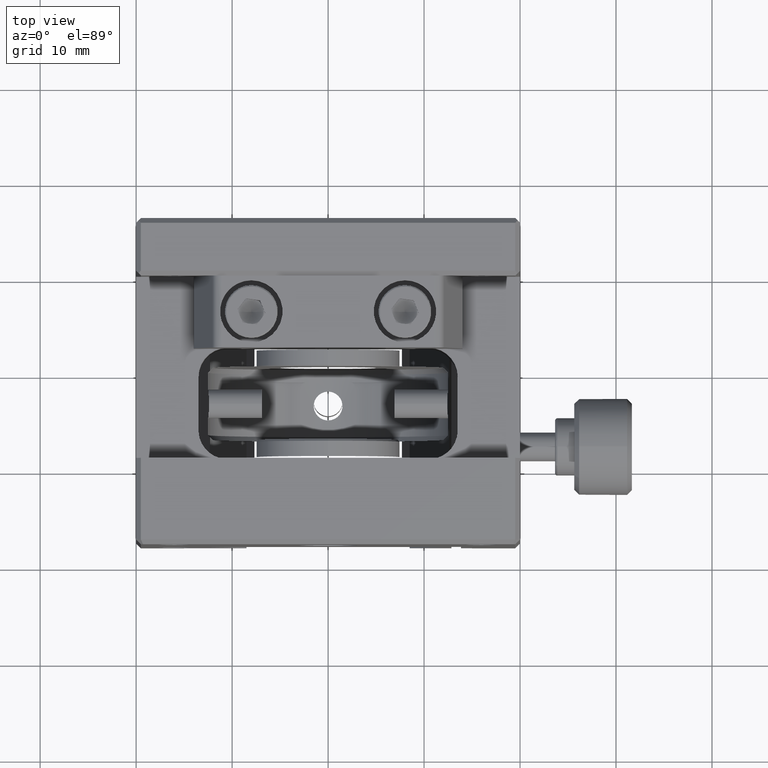
[diagram: clean part render]
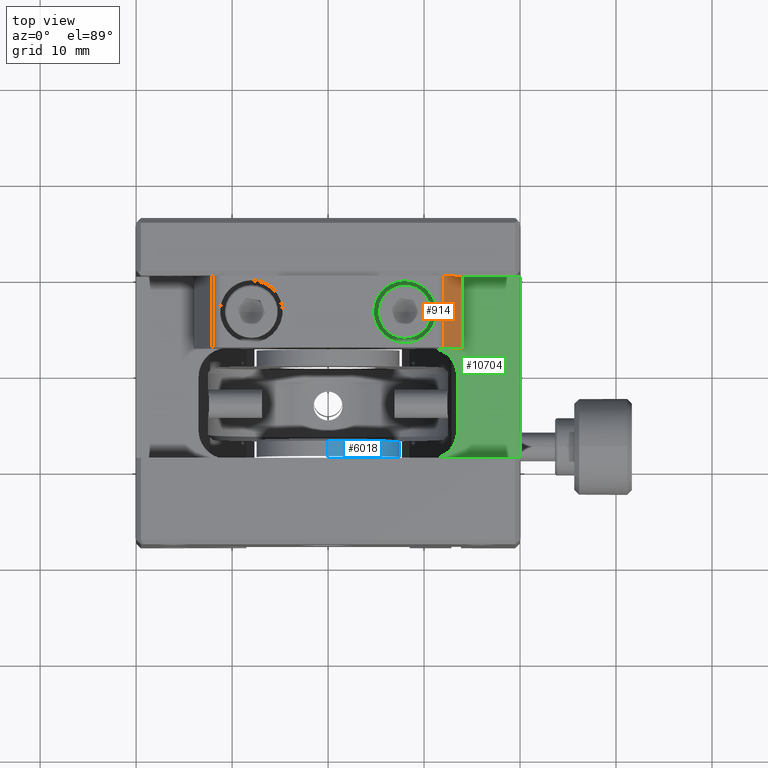
[diagram: same view with three faces highlighted in distinct colors, each labeled with its STEP entity id]
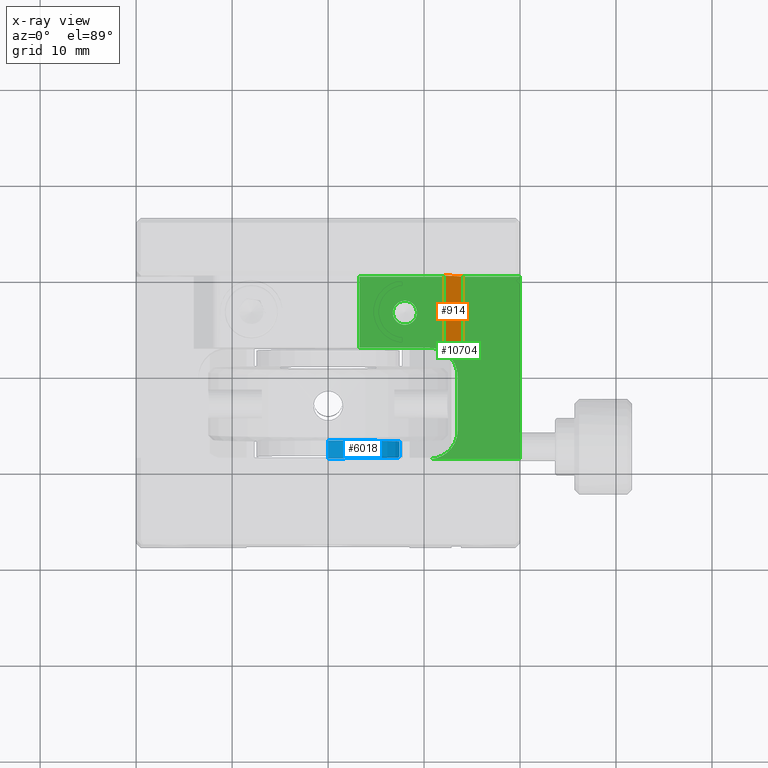
[diagram: x-ray of the same camera — body ghosted, the three highlighted faces saturated]
A machine part, top view with three faces highlighted in distinct colors.
The next image is the same camera in x-ray (body ghosted, the three faces saturated) — at least one of them is partly hidden behind the body in this view.
Their STEP definitions:

[orange] entity #914 — the highlighted planar face has unit normal (-0.9397, -0, -0.342).
#675 = LINE ( 'NONE', #8163, #6740 ) ;
#688 = CARTESIAN_POINT ( 'NONE',  ( 14.00000000000000355, 1.445602896647339311E-15, -6.000000000000000888 ) ) ;
#914 = ADVANCED_FACE ( 'NONE', ( #1617 ), #5361, .F. ) ;
#1058 = LINE ( 'NONE', #8606, #3440 ) ;
#1502 = CARTESIAN_POINT ( 'NONE',  ( 11.81617859440281570, -7.499999999999999112, -1.734723475976807094E-15 ) ) ;
#1615 = VECTOR ( 'NONE', #7151, 1000.000000000000000 ) ;
#1617 = FACE_OUTER_BOUND ( 'NONE', #2681, .T. ) ;
#1908 = CARTESIAN_POINT ( 'NONE',  ( 14.00000000000000355, -7.499999999999999112, -6.000000000000000000 ) ) ;
#2310 = CARTESIAN_POINT ( 'NONE',  ( 12.05566367697901242, -7.499999999999999112, -0.6579798566743361166 ) ) ;
#2583 = ORIENTED_EDGE ( 'NONE', *, *, #7235, .T. ) ;
#2681 = EDGE_LOOP ( 'NONE', ( #6447, #7740, #2583, #7247 ) ) ;
#2758 = DIRECTION ( 'NONE',  ( -0.3420201433256652712, -1.525740081227650588E-16, 0.9396926207859096492 ) ) ;
#3323 = AXIS2_PLACEMENT_3D ( 'NONE', #1502, #9102, #3342 ) ;
#3342 = DIRECTION ( 'NONE',  ( -0.3420201433256653267, 0.000000000000000000, 0.9396926207859096492 ) ) ;
#3440 = VECTOR ( 'NONE', #10371, 1000.000000000000000 ) ;
#4953 = CARTESIAN_POINT ( 'NONE',  ( 14.00000000000000355, -7.499999999999999112, -6.000000000000000888 ) ) ;
#5246 = CARTESIAN_POINT ( 'NONE',  ( 12.05566367697901242, -7.500000000000000000, -0.6579798566743362276 ) ) ;
#5361 = PLANE ( 'NONE',  #3323 ) ;
#6340 = EDGE_CURVE ( 'NONE', #8875, #7981, #9383, .T. ) ;
#6447 = ORIENTED_EDGE ( 'NONE', *, *, #7950, .F. ) ;
#6632 = CARTESIAN_POINT ( 'NONE',  ( 12.05566367697901065, 9.456068667634190452E-16, -0.6579798566743365607 ) ) ;
#6740 = VECTOR ( 'NONE', #10964, 1000.000000000000000 ) ;
#7151 = DIRECTION ( 'NONE',  ( -1.470527402446505349E-16, 1.000000000000000000, -5.352282031633185734E-17 ) ) ;
#7235 = EDGE_CURVE ( 'NONE', #8875, #11680, #675, .T. ) ;
#7247 = ORIENTED_EDGE ( 'NONE', *, *, #10917, .F. ) ;
#7279 = VERTEX_POINT ( 'NONE', #6632 ) ;
#7703 = VECTOR ( 'NONE', #2758, 1000.000000000000000 ) ;
#7740 = ORIENTED_EDGE ( 'NONE', *, *, #6340, .F. ) ;
#7950 = EDGE_CURVE ( 'NONE', #7981, #7279, #8869, .T. ) ;
#7981 = VERTEX_POINT ( 'NONE', #5246 ) ;
#8163 = CARTESIAN_POINT ( 'NONE',  ( 14.00000000000000355, -7.499999999999998224, -6.000000000000000000 ) ) ;
#8606 = CARTESIAN_POINT ( 'NONE',  ( 11.81617859440281393, 8.673617379884035472E-16, -2.136144628349295926E-15 ) ) ;
#8869 = LINE ( 'NONE', #2310, #1615 ) ;
#8875 = VERTEX_POINT ( 'NONE', #4953 ) ;
#9102 = DIRECTION ( 'NONE',  ( -0.9396926207859096492, -1.564902575500309221E-16, -0.3420201433256653267 ) ) ;
#9383 = LINE ( 'NONE', #1908, #7703 ) ;
#10371 = DIRECTION ( 'NONE',  ( 0.3420201433256653267, -0.000000000000000000, -0.9396926207859096492 ) ) ;
#10917 = EDGE_CURVE ( 'NONE', #7279, #11680, #1058, .T. ) ;
#10964 = DIRECTION ( 'NONE',  ( -1.665334536937734811E-16, 1.000000000000000000, -0.000000000000000000 ) ) ;
#11680 = VERTEX_POINT ( 'NONE', #688 ) ;

[blue] entity #6018 — the highlighted cylindrical surface (partial cylindrical patch) has radius 7.5 mm, axis along (-0, -1, -0).
#523 = EDGE_CURVE ( 'NONE', #10923, #3655, #3002, .T. ) ;
#893 = VECTOR ( 'NONE', #1133, 1000.000000000000000 ) ;
#1133 = DIRECTION ( 'NONE',  ( -0.000000000000000000, -1.000000000000000000, -0.000000000000000000 ) ) ;
#1534 = CARTESIAN_POINT ( 'NONE',  ( 9.184850993605142028E-16, -17.19999999999999929, -0.5000000000000004441 ) ) ;
#1725 = CARTESIAN_POINT ( 'NONE',  ( -5.777789833161707559E-31, -16.99999999999999289, -8.000000000000000000 ) ) ;
#2041 = CARTESIAN_POINT ( 'NONE',  ( 9.184850993605142028E-16, -18.79999999999999716, -0.5000000000000004441 ) ) ;
#2327 = DIRECTION ( 'NONE',  ( 0.000000000000000000, 0.000000000000000000, -1.000000000000000000 ) ) ;
#3002 = LINE ( 'NONE', #3868, #12109 ) ;
#3085 = CARTESIAN_POINT ( 'NONE',  ( -5.777789833161707559E-31, -17.19999999999999929, -15.50000000000000000 ) ) ;
#3150 = LINE ( 'NONE', #5855, #893 ) ;
#3573 = CARTESIAN_POINT ( 'NONE',  ( -5.777789833161707559E-31, -18.79999999999999716, -15.50000000000000000 ) ) ;
#3655 = VERTEX_POINT ( 'NONE', #3573 ) ;
#3868 = CARTESIAN_POINT ( 'NONE',  ( -5.777789833161707559E-31, -16.99999999999999289, -15.50000000000000000 ) ) ;
#4224 = EDGE_CURVE ( 'NONE', #10923, #11121, #10194, .T. ) ;
#4268 = ORIENTED_EDGE ( 'NONE', *, *, #5278, .T. ) ;
#4779 = DIRECTION ( 'NONE',  ( 0.000000000000000000, 1.000000000000000000, 0.000000000000000000 ) ) ;
#4799 = DIRECTION ( 'NONE',  ( 0.000000000000000000, 0.000000000000000000, -1.000000000000000000 ) ) ;
#4924 = AXIS2_PLACEMENT_3D ( 'NONE', #9069, #10663, #2327 ) ;
#5278 = EDGE_CURVE ( 'NONE', #10898, #3655, #5321, .T. ) ;
#5321 = CIRCLE ( 'NONE', #7685, 7.500000000000000000 ) ;
#5648 = EDGE_LOOP ( 'NONE', ( #5805, #9419, #4268, #6997 ) ) ;
#5805 = ORIENTED_EDGE ( 'NONE', *, *, #4224, .T. ) ;
#5855 = CARTESIAN_POINT ( 'NONE',  ( 9.184850993605142028E-16, -16.99999999999999289, -0.5000000000000004441 ) ) ;
#5942 = CARTESIAN_POINT ( 'NONE',  ( -5.777789833161707559E-31, -18.79999999999999716, -8.000000000000000000 ) ) ;
#6018 = ADVANCED_FACE ( 'NONE', ( #10121 ), #6581, .T. ) ;
#6581 = CYLINDRICAL_SURFACE ( 'NONE', #11199, 7.500000000000000000 ) ;
#6997 = ORIENTED_EDGE ( 'NONE', *, *, #523, .F. ) ;
#7545 = DIRECTION ( 'NONE',  ( -0.000000000000000000, -1.000000000000000000, -0.000000000000000000 ) ) ;
#7685 = AXIS2_PLACEMENT_3D ( 'NONE', #5942, #4779, #8766 ) ;
#8766 = DIRECTION ( 'NONE',  ( 0.000000000000000000, 0.000000000000000000, -1.000000000000000000 ) ) ;
#9069 = CARTESIAN_POINT ( 'NONE',  ( -5.777789833161707559E-31, -17.19999999999999929, -8.000000000000000000 ) ) ;
#9419 = ORIENTED_EDGE ( 'NONE', *, *, #10476, .T. ) ;
#10121 = FACE_OUTER_BOUND ( 'NONE', #5648, .T. ) ;
#10194 = CIRCLE ( 'NONE', #4924, 7.500000000000000000 ) ;
#10476 = EDGE_CURVE ( 'NONE', #11121, #10898, #3150, .T. ) ;
#10663 = DIRECTION ( 'NONE',  ( -0.000000000000000000, -1.000000000000000000, -0.000000000000000000 ) ) ;
#10898 = VERTEX_POINT ( 'NONE', #2041 ) ;
#10923 = VERTEX_POINT ( 'NONE', #3085 ) ;
#11121 = VERTEX_POINT ( 'NONE', #1534 ) ;
#11158 = DIRECTION ( 'NONE',  ( -0.000000000000000000, -1.000000000000000000, -0.000000000000000000 ) ) ;
#11199 = AXIS2_PLACEMENT_3D ( 'NONE', #1725, #11158, #4799 ) ;
#12109 = VECTOR ( 'NONE', #7545, 1000.000000000000000 ) ;

[green] entity #10704 — the highlighted planar face has unit normal (0, -0, -1).
#27 = CARTESIAN_POINT ( 'NONE',  ( 7.499993541613416248, -4.895850069176868047, -8.000000000000000000 ) ) ;
#72 = VERTEX_POINT ( 'NONE', #1786 ) ;
#93 = VECTOR ( 'NONE', #7124, 1000.000000000000000 ) ;
#102 = B_SPLINE_CURVE_WITH_KNOTS ( 'NONE', 3,
 ( #4556, #887, #8498, #12025, #1008, #11240, #2848, #946, #2664, #11959, #4496, #3639, #7383, #10258, #11114, #7510, #5610, #1737, #11173, #5480, #9409, #11050, #6596, #4685, #8431, #12087, #6531, #2722, #11303, #27, #10323, #1932, #1992, #3766 ),
 .UNSPECIFIED., .F., .F.,
 ( 4, 1, 1, 2, 2, 2, 1, 1, 2, 2, 2, 1, 1, 2, 2, 2, 1, 1, 2, 2, 4 ),
 ( -1.000000000000000000, -0.9375000000000035527, -0.9062500000000046629, -0.8906250000000048850, -0.8750000000000051070, -0.7500000000000062172, -0.6875000000000068834, -0.6562500000000069944, -0.6406250000000071054, -0.6250000000000071054, -0.5000000000000068834, -0.4375000000000067724, -0.4062500000000069944, -0.3906250000000074385, -0.3750000000000078826, -0.2500000000000073275, -0.1875000000000072164, -0.1562500000000068834, -0.1406250000000067724, -0.1250000000000066613, -0.000000000000000000 ),
 .UNSPECIFIED. ) ;
#348 = CARTESIAN_POINT ( 'NONE',  ( 10.50000000000000178, -7.400000000000000355, -7.999999999999998224 ) ) ;
#384 = VECTOR ( 'NONE', #2757, 1000.000000000000000 ) ;
#396 = ORIENTED_EDGE ( 'NONE', *, *, #7531, .T. ) ;
#432 = CARTESIAN_POINT ( 'NONE',  ( 8.762040589325788886, -4.755621433371129747, -8.000000000000000000 ) ) ;
#493 = CARTESIAN_POINT ( 'NONE',  ( 8.500006458386717867, -2.604149930823215886, -7.999999999999996447 ) ) ;
#569 = EDGE_CURVE ( 'NONE', #1240, #6356, #8345, .T. ) ;
#608 = CARTESIAN_POINT ( 'NONE',  ( 8.440097116323562076, -4.920152050935755028, -8.000000000000000000 ) ) ;
#647 = ORIENTED_EDGE ( 'NONE', *, *, #10189, .F. ) ;
#667 = CARTESIAN_POINT ( 'NONE',  ( 9.176421480074893111, -3.326998695649778348, -8.000000000000000000 ) ) ;
#854 = ORIENTED_EDGE ( 'NONE', *, *, #5142, .F. ) ;
#887 = CARTESIAN_POINT ( 'NONE',  ( 7.920612784121279226, -2.500000000000011546, -7.999999999999998224 ) ) ;
#946 = CARTESIAN_POINT ( 'NONE',  ( 7.379711448015188857, -2.651098020535079147, -7.999999999999998224 ) ) ;
#1008 = CARTESIAN_POINT ( 'NONE',  ( 7.614289195640550290, -2.560795286189442077, -7.999999999999996447 ) ) ;
#1211 = CARTESIAN_POINT ( 'NONE',  ( 13.49999999999999822, -10.40000000000000213, -7.999999999999998224 ) ) ;
#1240 = VERTEX_POINT ( 'NONE', #7075 ) ;
#1245 = CARTESIAN_POINT ( 'NONE',  ( 13.47367061289842027, -16.47199277660315175, -8.000000000000001776 ) ) ;
#1355 = CARTESIAN_POINT ( 'NONE',  ( 8.478570188832593502, -2.595078342311302855, -7.999999999999998224 ) ) ;
#1414 = CARTESIAN_POINT ( 'NONE',  ( 9.145850069176427510, -4.250006458387224129, -7.999999999999996447 ) ) ;
#1422 = CARTESIAN_POINT ( 'NONE',  ( -19.99999999999999645, -19.00000000000000000, -7.999999999999998224 ) ) ;
#1529 = CARTESIAN_POINT ( 'NONE',  ( 8.329462014452316154, -4.957031902993924710, -7.999999999999998224 ) ) ;
#1586 = CARTESIAN_POINT ( 'NONE',  ( 8.385710804359064241, -4.939204713810558367, -7.999999999999998224 ) ) ;
#1652 = VECTOR ( 'NONE', #5159, 1000.000000000000000 ) ;
#1673 = CARTESIAN_POINT ( 'NONE',  ( 10.50000000000000178, -7.400000000000000355, -7.999999999999998224 ) ) ;
#1689 = ORIENTED_EDGE ( 'NONE', *, *, #10400, .F. ) ;
#1737 = CARTESIAN_POINT ( 'NONE',  ( 6.749966349049403291, -3.829302112622358756, -8.000000000000000000 ) ) ;
#1786 = CARTESIAN_POINT ( 'NONE',  ( 8.000000000000001776, -4.999999999999988454, -7.999999999999998224 ) ) ;
#1932 = CARTESIAN_POINT ( 'NONE',  ( 7.687496028089998212, -4.970745125442667778, -8.000000000000000000 ) ) ;
#1992 = CARTESIAN_POINT ( 'NONE',  ( 7.840868823740778204, -4.999999999999989342, -8.000000000000000000 ) ) ;
#2165 = CARTESIAN_POINT ( 'NONE',  ( 12.47472323207150247, -18.26786483831504881, -8.000000000000000000 ) ) ;
#2282 = CARTESIAN_POINT ( 'NONE',  ( 13.13669920371255095, -17.48971598678195960, -7.999999999999998224 ) ) ;
#2329 = CARTESIAN_POINT ( 'NONE',  ( 8.312503971910322420, -2.529254874557332666, -8.000000000000000000 ) ) ;
#2386 = B_SPLINE_CURVE_WITH_KNOTS ( 'NONE', 3,
 ( #11099, #2709, #1245, #4860, #3198, #8605, #7861, #8838, #2282, #5785, #2165, #5042, #8783, #7621, #6946, #9522, #11465, #9701, #10671, #3139 ),
 .UNSPECIFIED., .F., .F.,
 ( 4, 1, 1, 1, 2, 2, 2, 1, 1, 1, 2, 2, 4 ),
 ( 0.000000000000000000, 0.1250000000000053568, 0.1875000000000092149, 0.2187500000000111300, 0.2343750000000120737, 0.2500000000000130451, 0.5000000000000150990, 0.6250000000000157652, 0.6875000000000165423, 0.7187500000000169864, 0.7343750000000162093, 0.7500000000000154321, 1.000000000000000000 ),
 .UNSPECIFIED. ) ;
#2390 = CARTESIAN_POINT ( 'NONE',  ( 8.596524617191235507, -2.649880677853070576, -7.999999999999998224 ) ) ;
#2468 = FACE_OUTER_BOUND ( 'NONE', #4835, .T. ) ;
#2509 = CARTESIAN_POINT ( 'NONE',  ( 9.100119322145930667, -4.346524617192653039, -8.000000000000001776 ) ) ;
#2560 = LINE ( 'NONE', #4341, #5768 ) ;
#2570 = CARTESIAN_POINT ( 'NONE',  ( 8.159131176259542428, -2.500000000000011990, -8.000000000000001776 ) ) ;
#2661 = AXIS2_PLACEMENT_3D ( 'NONE', #4482, #3566, #4736 ) ;
#2664 = CARTESIAN_POINT ( 'NONE',  ( 7.237959410675434135, -2.744378566626685778, -8.000000000000000000 ) ) ;
#2709 = CARTESIAN_POINT ( 'NONE',  ( 13.50000000000000355, -16.19083272029567055, -7.999999999999998224 ) ) ;
#2722 = CARTESIAN_POINT ( 'NONE',  ( 7.403475382809137528, -4.850119322147165235, -7.999999999999996447 ) ) ;
#2757 = DIRECTION ( 'NONE',  ( 0.000000000000000000, -1.000000000000000000, -0.000000000000000000 ) ) ;
#2848 = CARTESIAN_POINT ( 'NONE',  ( 7.559902883676723917, -2.579847949064084212, -7.999999999999998224 ) ) ;
#2862 = LINE ( 'NONE', #9232, #9890 ) ;
#2886 = ORIENTED_EDGE ( 'NONE', *, *, #10278, .F. ) ;
#3139 = CARTESIAN_POINT ( 'NONE',  ( 10.50000000000000000, -18.99999999999999645, -7.999999999999998224 ) ) ;
#3163 = CARTESIAN_POINT ( 'NONE',  ( 13.12135916506277056, -8.889143058887301052, -7.999999999999996447 ) ) ;
#3198 = CARTESIAN_POINT ( 'NONE',  ( 13.34696043747201877, -16.94843773872451820, -7.999999999999994671 ) ) ;
#3223 = CARTESIAN_POINT ( 'NONE',  ( 10.89269908169872636, -7.400000000000003020, -7.999999999999998224 ) ) ;
#3246 = DIRECTION ( 'NONE',  ( -1.000000000000000000, -0.000000000000000000, -0.000000000000000000 ) ) ;
#3255 = CARTESIAN_POINT ( 'NONE',  ( 9.207076069866770851, -3.420649683572470678, -7.999999999999998224 ) ) ;
#3458 = VERTEX_POINT ( 'NONE', #1673 ) ;
#3491 = CARTESIAN_POINT ( 'NONE',  ( 9.098901979466141654, -3.129711448016753383, -8.000000000000000000 ) ) ;
#3566 = DIRECTION ( 'NONE',  ( 1.836970198721029934E-16, -7.002363793508635931E-33, -1.000000000000000000 ) ) ;
#3577 = DIRECTION ( 'NONE',  ( 1.286313360927850427E-48, 1.000000000000000000, -7.002363793508635931E-33 ) ) ;
#3639 = CARTESIAN_POINT ( 'NONE',  ( 6.899880677853279742, -3.153475382808781369, -7.999999999999996447 ) ) ;
#3766 = CARTESIAN_POINT ( 'NONE',  ( 8.000000000000001776, -4.999999999999988454, -7.999999999999998224 ) ) ;
#4172 = CARTESIAN_POINT ( 'NONE',  ( 8.000000000000001776, -4.999999999999988454, -7.999999999999998224 ) ) ;
#4186 = ORIENTED_EDGE ( 'NONE', *, *, #8633, .F. ) ;
#4328 = B_SPLINE_CURVE_WITH_KNOTS ( 'NONE', 3,
 ( #1211, #4884, #10462, #3163, #6049, #4947, #9551, #5867, #3223, #348 ),
 .UNSPECIFIED., .F., .F.,
 ( 4, 2, 2, 2, 4 ),
 ( 0.000000000000000000, 0.2500000000000000000, 0.5000000000000000000, 0.7500000000000000000, 1.000000000000000000 ),
 .UNSPECIFIED. ) ;
#4341 = CARTESIAN_POINT ( 'NONE',  ( 0.000000000000000000, 0.000000000000000000, -7.999999999999996447 ) ) ;
#4482 = CARTESIAN_POINT ( 'NONE',  ( 1.469576158976824342E-15, 0.000000000000000000, -8.000000000000000000 ) ) ;
#4496 = CARTESIAN_POINT ( 'NONE',  ( 6.974710009772437047, -3.025607871987050945, -8.000000000000000000 ) ) ;
#4505 = VERTEX_POINT ( 'NONE', #6987 ) ;
#4556 = CARTESIAN_POINT ( 'NONE',  ( 8.000000000000001776, -2.500000000000011546, -7.999999999999998224 ) ) ;
#4613 = VERTEX_POINT ( 'NONE', #9227 ) ;
#4685 = CARTESIAN_POINT ( 'NONE',  ( 6.901098020535054722, -4.370288551984643277, -8.000000000000000000 ) ) ;
#4736 = DIRECTION ( 'NONE',  ( -1.000000000000000000, 0.000000000000000000, -1.836970198721029934E-16 ) ) ;
#4835 = EDGE_LOOP ( 'NONE', ( #4186, #647, #2886, #11826, #5470, #6212, #9049, #396 ) ) ;
#4860 = CARTESIAN_POINT ( 'NONE',  ( 13.39687656718544062, -16.79110705005707160, -7.999999999999998224 ) ) ;
#4884 = CARTESIAN_POINT ( 'NONE',  ( 13.49999999999999822, -10.00730091830127577, -8.000000000000000000 ) ) ;
#4947 = CARTESIAN_POINT ( 'NONE',  ( 12.34364015992474251, -8.000999472805460755, -7.999999999999998224 ) ) ;
#5042 = CARTESIAN_POINT ( 'NONE',  ( 12.23764587159613804, -18.46127877933504635, -7.999999999999998224 ) ) ;
#5142 = EDGE_CURVE ( 'NONE', #72, #8587, #5315, .T. ) ;
#5159 = DIRECTION ( 'NONE',  ( 1.000000000000000000, 8.673617379884034239E-17, 0.000000000000000000 ) ) ;
#5202 = VERTEX_POINT ( 'NONE', #8588 ) ;
#5315 = B_SPLINE_CURVE_WITH_KNOTS ( 'NONE', 3,
 ( #4172, #8834, #7005, #1529, #1586, #5327, #608, #9811, #432, #6316, #8957, #2509, #8895, #1414, #7917, #7057, #7177, #6138, #11639, #3255, #10726, #667, #10957, #3491, #6199, #9071, #11697, #2390, #10902, #493, #1355, #2329, #2570, #9872 ),
 .UNSPECIFIED., .F., .F.,
 ( 4, 1, 1, 2, 2, 2, 1, 1, 2, 2, 2, 1, 1, 2, 2, 2, 1, 1, 2, 2, 4 ),
 ( -1.000000000000000000, -0.9375000000000004441, -0.9062500000000005551, -0.8906250000000006661, -0.8750000000000007772, -0.7500000000000034417, -0.6875000000000052180, -0.6562500000000054401, -0.6406250000000058842, -0.6250000000000063283, -0.5000000000000039968, -0.4375000000000028866, -0.4062500000000023315, -0.3906250000000023315, -0.3750000000000023315, -0.2500000000000016653, -0.1875000000000008882, -0.1562500000000003331, -0.1406249999999994449, -0.1249999999999985567, -0.000000000000000000 ),
 .UNSPECIFIED. ) ;
#5327 = CARTESIAN_POINT ( 'NONE',  ( 8.423041196501928951, -4.926405706191730793, -7.999999999999996447 ) ) ;
#5470 = ORIENTED_EDGE ( 'NONE', *, *, #6040, .T. ) ;
#5480 = CARTESIAN_POINT ( 'NONE',  ( 6.792923930133399679, -4.079350316428928203, -8.000000000000000000 ) ) ;
#5610 = CARTESIAN_POINT ( 'NONE',  ( 6.750067301901229833, -3.591395774755279824, -7.999999999999994671 ) ) ;
#5733 = CARTESIAN_POINT ( 'NONE',  ( 13.50000000000000178, 0.000000000000000000, -7.999999999999998224 ) ) ;
#5768 = VECTOR ( 'NONE', #3246, 1000.000000000000000 ) ;
#5785 = CARTESIAN_POINT ( 'NONE',  ( 12.91451456653593866, -17.82823135404882464, -8.000000000000000000 ) ) ;
#5867 = CARTESIAN_POINT ( 'NONE',  ( 11.28524365307784372, -7.478081969995056255, -7.999999999999998224 ) ) ;
#6040 = EDGE_CURVE ( 'NONE', #8736, #6967, #2386, .T. ) ;
#6049 = CARTESIAN_POINT ( 'NONE',  ( 12.89900052719454138, -8.556359840075257850, -7.999999999999998224 ) ) ;
#6138 = CARTESIAN_POINT ( 'NONE',  ( 9.250033650950728159, -3.670697887378706614, -7.999999999999998224 ) ) ;
#6199 = CARTESIAN_POINT ( 'NONE',  ( 9.005621433373287132, -2.987959410675748551, -7.999999999999998224 ) ) ;
#6208 = CARTESIAN_POINT ( 'NONE',  ( 3.250000000000000888, 0.000000000000000000, -8.000000000000000000 ) ) ;
#6212 = ORIENTED_EDGE ( 'NONE', *, *, #8700, .T. ) ;
#6215 = FACE_BOUND ( 'NONE', #9660, .T. ) ;
#6316 = CARTESIAN_POINT ( 'NONE',  ( 8.944804920061873332, -4.573014498039202458, -7.999999999999998224 ) ) ;
#6356 = VERTEX_POINT ( 'NONE', #8281 ) ;
#6531 = CARTESIAN_POINT ( 'NONE',  ( 7.275607871987523012, -4.775289990228159809, -7.999999999999998224 ) ) ;
#6596 = CARTESIAN_POINT ( 'NONE',  ( 6.829847949064088652, -4.190097116323298287, -7.999999999999998224 ) ) ;
#6946 = CARTESIAN_POINT ( 'NONE',  ( 11.69959672889747004, -18.74992124473573796, -7.999999999999998224 ) ) ;
#6949 = LINE ( 'NONE', #1422, #1652 ) ;
#6967 = VERTEX_POINT ( 'NONE', #10990 ) ;
#6987 = CARTESIAN_POINT ( 'NONE',  ( 13.49999999999999822, -10.40000000000000213, -7.999999999999998224 ) ) ;
#7005 = CARTESIAN_POINT ( 'NONE',  ( 8.196442426156018257, -4.989029422040993644, -7.999999999999998224 ) ) ;
#7057 = CARTESIAN_POINT ( 'NONE',  ( 9.220677527567582743, -4.062674514786211333, -7.999999999999998224 ) ) ;
#7075 = CARTESIAN_POINT ( 'NONE',  ( 20.00000000000000355, 0.000000000000000000, -7.999999999999996447 ) ) ;
#7124 = DIRECTION ( 'NONE',  ( 1.286313360927850427E-48, 1.000000000000000000, -7.002363793508635931E-33 ) ) ;
#7177 = CARTESIAN_POINT ( 'NONE',  ( 9.249932698098515260, -3.908604225242585439, -8.000000000000000000 ) ) ;
#7363 = VECTOR ( 'NONE', #3577, 1000.000000000000000 ) ;
#7383 = CARTESIAN_POINT ( 'NONE',  ( 6.871897374875093334, -3.211020332973609559, -7.999999999999998224 ) ) ;
#7510 = CARTESIAN_POINT ( 'NONE',  ( 6.779322472432160573, -3.437325485215260823, -7.999999999999996447 ) ) ;
#7531 = EDGE_CURVE ( 'NONE', #1240, #5202, #2560, .T. ) ;
#7621 = CARTESIAN_POINT ( 'NONE',  ( 11.77014155520712357, -18.71889459771121267, -7.999999999999996447 ) ) ;
#7861 = CARTESIAN_POINT ( 'NONE',  ( 13.30664356347270960, -17.05991562070097700, -7.999999999999996447 ) ) ;
#7917 = CARTESIAN_POINT ( 'NONE',  ( 9.154930107423089325, -4.228548870973102503, -7.999999999999996447 ) ) ;
#8042 = CARTESIAN_POINT ( 'NONE',  ( 13.50000000000000178, -15.99999999999999289, -7.999999999999998224 ) ) ;
#8281 = CARTESIAN_POINT ( 'NONE',  ( 20.00000000000000711, -18.99999999999999645, -7.999999999999998224 ) ) ;
#8345 = LINE ( 'NONE', #10355, #384 ) ;
#8431 = CARTESIAN_POINT ( 'NONE',  ( 6.994378566626151539, -4.512040589323890849, -8.000000000000000000 ) ) ;
#8484 = PLANE ( 'NONE',  #2661 ) ;
#8498 = CARTESIAN_POINT ( 'NONE',  ( 7.803557573843187711, -2.510970577959005468, -7.999999999999998224 ) ) ;
#8587 = VERTEX_POINT ( 'NONE', #9585 ) ;
#8588 = CARTESIAN_POINT ( 'NONE',  ( 3.250000000000000888, 2.090259211507756470E-48, -8.000000000000000000 ) ) ;
#8605 = CARTESIAN_POINT ( 'NONE',  ( 13.32309943041120626, -17.01538808071209985, -7.999999999999998224 ) ) ;
#8633 = EDGE_CURVE ( 'NONE', #4613, #5202, #9936, .T. ) ;
#8700 = EDGE_CURVE ( 'NONE', #6967, #6356, #6949, .T. ) ;
#8736 = VERTEX_POINT ( 'NONE', #8042 ) ;
#8783 = CARTESIAN_POINT ( 'NONE',  ( 11.93098765453271426, -18.64072347524381357, -7.999999999999998224 ) ) ;
#8834 = CARTESIAN_POINT ( 'NONE',  ( 8.079387215878272244, -4.999999999999990230, -8.000000000000000000 ) ) ;
#8838 = CARTESIAN_POINT ( 'NONE',  ( 13.29890650940446228, -17.08019463755459100, -7.999999999999996447 ) ) ;
#8895 = CARTESIAN_POINT ( 'NONE',  ( 9.128102625124398628, -4.288979667027314591, -7.999999999999998224 ) ) ;
#8957 = CARTESIAN_POINT ( 'NONE',  ( 9.025289990226507797, -4.474392128014863523, -7.999999999999994671 ) ) ;
#9049 = ORIENTED_EDGE ( 'NONE', *, *, #569, .F. ) ;
#9071 = CARTESIAN_POINT ( 'NONE',  ( 8.823014498038126874, -2.805195079937362390, -7.999999999999998224 ) ) ;
#9227 = CARTESIAN_POINT ( 'NONE',  ( 3.250000000000001332, -7.399999999999999467, -8.000000000000000000 ) ) ;
#9232 = CARTESIAN_POINT ( 'NONE',  ( 1.469576158976824342E-15, -7.399999999999998579, -8.000000000000000000 ) ) ;
#9409 = CARTESIAN_POINT ( 'NONE',  ( 6.810766893199867056, -4.135638998486889761, -7.999999999999998224 ) ) ;
#9522 = CARTESIAN_POINT ( 'NONE',  ( 11.65220889274847238, -18.77005561772890729, -7.999999999999996447 ) ) ;
#9551 = CARTESIAN_POINT ( 'NONE',  ( 12.01085694111269753, -7.778640834937230686, -7.999999999999998224 ) ) ;
#9585 = CARTESIAN_POINT ( 'NONE',  ( 8.000000000000001776, -2.500000000000011546, -7.999999999999998224 ) ) ;
#9660 = EDGE_LOOP ( 'NONE', ( #1689, #854 ) ) ;
#9701 = CARTESIAN_POINT ( 'NONE',  ( 11.24940340591473387, -18.92978830106242327, -7.999999999999996447 ) ) ;
#9811 = CARTESIAN_POINT ( 'NONE',  ( 8.620288551982552505, -4.848901979466210044, -7.999999999999998224 ) ) ;
#9872 = CARTESIAN_POINT ( 'NONE',  ( 8.000000000000001776, -2.500000000000011546, -7.999999999999998224 ) ) ;
#9890 = VECTOR ( 'NONE', #10275, 1000.000000000000000 ) ;
#9936 = LINE ( 'NONE', #6208, #93 ) ;
#10189 = EDGE_CURVE ( 'NONE', #3458, #4613, #2862, .T. ) ;
#10258 = CARTESIAN_POINT ( 'NONE',  ( 6.854149930823290049, -3.249993541613289239, -8.000000000000000000 ) ) ;
#10275 = DIRECTION ( 'NONE',  ( -1.000000000000000000, 0.000000000000000000, -1.836970198721029934E-16 ) ) ;
#10278 = EDGE_CURVE ( 'NONE', #4505, #3458, #4328, .T. ) ;
#10323 = CARTESIAN_POINT ( 'NONE',  ( 7.521429811167371859, -4.904921657688698033, -8.000000000000000000 ) ) ;
#10355 = CARTESIAN_POINT ( 'NONE',  ( 20.00000000000000000, -28.00000000000000000, -7.999999999999996447 ) ) ;
#10383 = LINE ( 'NONE', #5733, #7363 ) ;
#10400 = EDGE_CURVE ( 'NONE', #8587, #72, #102, .T. ) ;
#10457 = EDGE_CURVE ( 'NONE', #8736, #4505, #10383, .T. ) ;
#10462 = CARTESIAN_POINT ( 'NONE',  ( 13.42191803000494588, -9.614756346922161967, -7.999999999999998224 ) ) ;
#10671 = CARTESIAN_POINT ( 'NONE',  ( 10.88130869635286224, -18.99999999999999289, -7.999999999999996447 ) ) ;
#10704 = ADVANCED_FACE ( 'NONE', ( #2468, #6215 ), #8484, .F. ) ;
#10726 = CARTESIAN_POINT ( 'NONE',  ( 9.189233106800246631, -3.364361001514009963, -7.999999999999996447 ) ) ;
#10902 = CARTESIAN_POINT ( 'NONE',  ( 8.538979667026408649, -2.621897374874958775, -8.000000000000000000 ) ) ;
#10957 = CARTESIAN_POINT ( 'NONE',  ( 9.170152050935769239, -3.309902883676527185, -7.999999999999996447 ) ) ;
#10990 = CARTESIAN_POINT ( 'NONE',  ( 10.50000000000000000, -18.99999999999999645, -7.999999999999998224 ) ) ;
#11050 = CARTESIAN_POINT ( 'NONE',  ( 6.823578519925174390, -4.173001304350720808, -7.999999999999998224 ) ) ;
#11099 = CARTESIAN_POINT ( 'NONE',  ( 13.50000000000000178, -15.99999999999999289, -7.999999999999998224 ) ) ;
#11114 = CARTESIAN_POINT ( 'NONE',  ( 6.845069892576949755, -3.271451129026711424, -7.999999999999996447 ) ) ;
#11173 = CARTESIAN_POINT ( 'NONE',  ( 6.760911688795441243, -3.946293495458171208, -7.999999999999998224 ) ) ;
#11240 = CARTESIAN_POINT ( 'NONE',  ( 7.576958803497858774, -2.573594293808270095, -7.999999999999998224 ) ) ;
#11303 = CARTESIAN_POINT ( 'NONE',  ( 7.461020332973836489, -4.878102625125193548, -7.999999999999998224 ) ) ;
#11465 = CARTESIAN_POINT ( 'NONE',  ( 11.62646417385879616, -18.78058844082008960, -8.000000000000000000 ) ) ;
#11639 = CARTESIAN_POINT ( 'NONE',  ( 9.239088311204788795, -3.553706504543693967, -7.999999999999998224 ) ) ;
#11697 = CARTESIAN_POINT ( 'NONE',  ( 8.724392128012983250, -2.724710009772157271, -8.000000000000000000 ) ) ;
#11826 = ORIENTED_EDGE ( 'NONE', *, *, #10457, .F. ) ;
#11959 = CARTESIAN_POINT ( 'NONE',  ( 7.055195079937520930, -2.926985501961893554, -7.999999999999998224 ) ) ;
#12025 = CARTESIAN_POINT ( 'NONE',  ( 7.670537985547090543, -2.542968097006075290, -7.999999999999994671 ) ) ;
#12087 = CARTESIAN_POINT ( 'NONE',  ( 7.176985501962162672, -4.694804920062819242, -8.000000000000000000 ) ) ;